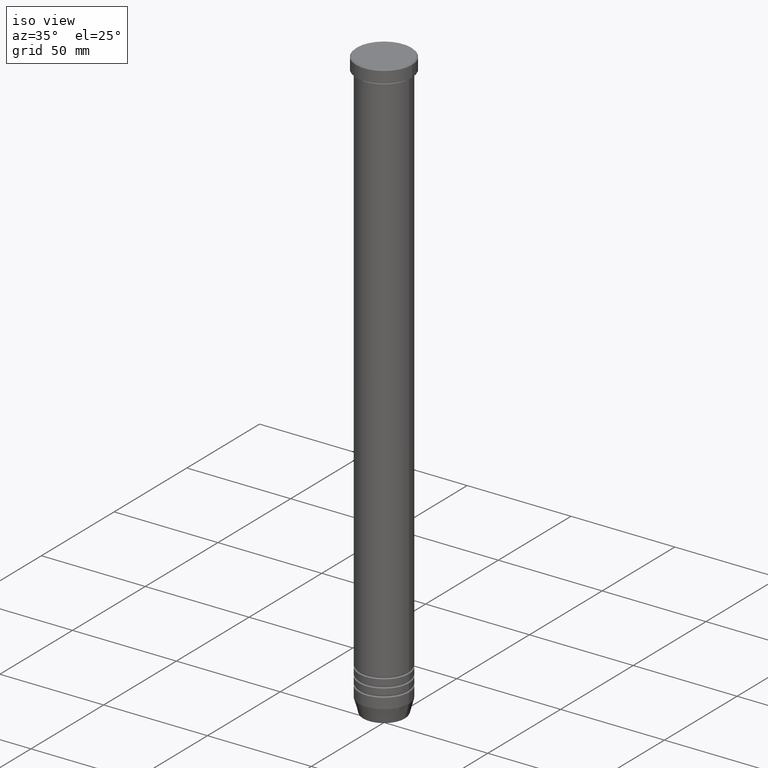
[diagram: clean part render]
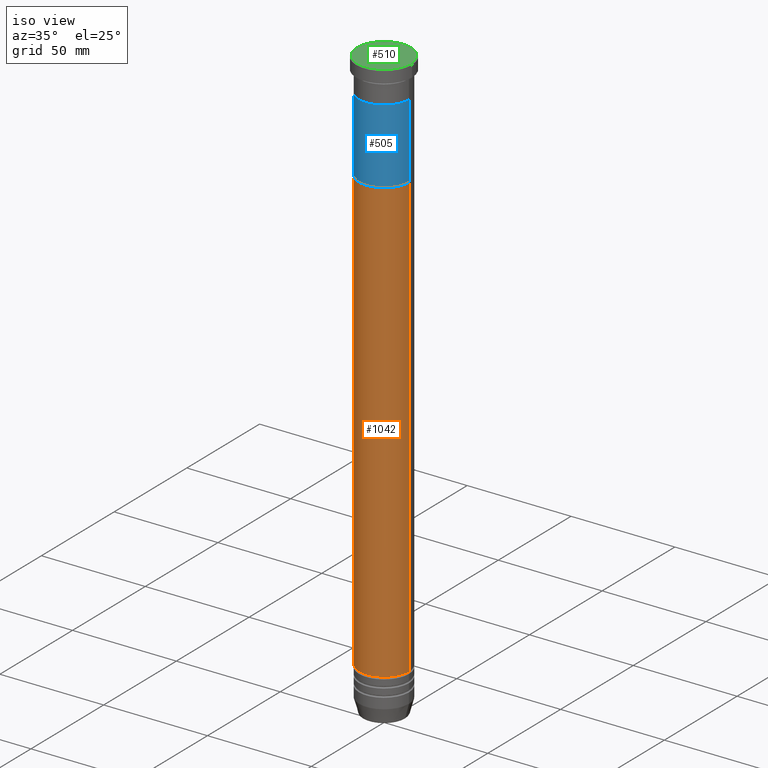
[diagram: same view with three faces highlighted in distinct colors, each labeled with its STEP entity id]
A machine part, iso view with three faces highlighted in distinct colors.
Their STEP definitions:

[orange] entity #1042 — the highlighted cylindrical surface (edge-blend (fillet) strip) has radius 12 mm, axis along (-0, -0, 1).
#18 = CARTESIAN_POINT ( 'NONE',  ( 11.99999999999999822, 0.000000000000000000, 0.000000000000000000 ) ) ;
#215 = AXIS2_PLACEMENT_3D ( 'NONE', #547, #391, #735 ) ;
#237 = FACE_OUTER_BOUND ( 'NONE', #411, .T. ) ;
#241 = CARTESIAN_POINT ( 'NONE',  ( 0.000000000000000000, 0.000000000000000000, 0.000000000000000000 ) ) ;
#250 = AXIS2_PLACEMENT_3D ( 'NONE', #273, #676, #1030 ) ;
#273 = CARTESIAN_POINT ( 'NONE',  ( 0.000000000000000000, 0.000000000000000000, -52.00000000000000000 ) ) ;
#341 = LINE ( 'NONE', #452, #718 ) ;
#343 = ORIENTED_EDGE ( 'NONE', *, *, #1076, .F. ) ;
#371 = CARTESIAN_POINT ( 'NONE',  ( -12.00000000000000178, 1.469576158976824144E-15, -52.00000000000000000 ) ) ;
#382 = CARTESIAN_POINT ( 'NONE',  ( -11.99999999999999467, 1.469576158976823553E-15, -265.0000000000000000 ) ) ;
#391 = DIRECTION ( 'NONE',  ( -0.000000000000000000, -0.000000000000000000, 1.000000000000000000 ) ) ;
#411 = EDGE_LOOP ( 'NONE', ( #548, #1072, #635, #343 ) ) ;
#452 = CARTESIAN_POINT ( 'NONE',  ( -11.99999999999999822, 1.469576158976823750E-15, 0.000000000000000000 ) ) ;
#499 = CIRCLE ( 'NONE', #215, 11.99999999999999467 ) ;
#500 = DIRECTION ( 'NONE',  ( 1.000000000000000000, 0.000000000000000000, 0.000000000000000000 ) ) ;
#547 = CARTESIAN_POINT ( 'NONE',  ( 0.000000000000000000, 0.000000000000000000, -265.0000000000000000 ) ) ;
#548 = ORIENTED_EDGE ( 'NONE', *, *, #642, .F. ) ;
#584 = CYLINDRICAL_SURFACE ( 'NONE', #1107, 11.99999999999999822 ) ;
#595 = EDGE_CURVE ( 'NONE', #1032, #1059, #948, .T. ) ;
#635 = ORIENTED_EDGE ( 'NONE', *, *, #595, .T. ) ;
#642 = EDGE_CURVE ( 'NONE', #655, #1022, #341, .T. ) ;
#654 = EDGE_CURVE ( 'NONE', #655, #1032, #499, .T. ) ;
#655 = VERTEX_POINT ( 'NONE', #382 ) ;
#671 = CARTESIAN_POINT ( 'NONE',  ( 11.99999999999999467, 0.000000000000000000, -265.0000000000000000 ) ) ;
#676 = DIRECTION ( 'NONE',  ( -0.000000000000000000, -0.000000000000000000, 1.000000000000000000 ) ) ;
#690 = DIRECTION ( 'NONE',  ( -0.000000000000000000, -0.000000000000000000, 1.000000000000000000 ) ) ;
#718 = VECTOR ( 'NONE', #804, 1000.000000000000000 ) ;
#735 = DIRECTION ( 'NONE',  ( 1.000000000000000000, 0.000000000000000000, 0.000000000000000000 ) ) ;
#794 = CIRCLE ( 'NONE', #250, 12.00000000000000178 ) ;
#804 = DIRECTION ( 'NONE',  ( -0.000000000000000000, -0.000000000000000000, 1.000000000000000000 ) ) ;
#925 = VECTOR ( 'NONE', #690, 1000.000000000000000 ) ;
#948 = LINE ( 'NONE', #18, #925 ) ;
#1022 = VERTEX_POINT ( 'NONE', #371 ) ;
#1030 = DIRECTION ( 'NONE',  ( 1.000000000000000000, 0.000000000000000000, 0.000000000000000000 ) ) ;
#1032 = VERTEX_POINT ( 'NONE', #671 ) ;
#1042 = ADVANCED_FACE ( 'NONE', ( #237 ), #584, .T. ) ;
#1059 = VERTEX_POINT ( 'NONE', #1061 ) ;
#1061 = CARTESIAN_POINT ( 'NONE',  ( 12.00000000000000178, 0.000000000000000000, -52.00000000000000000 ) ) ;
#1072 = ORIENTED_EDGE ( 'NONE', *, *, #654, .T. ) ;
#1076 = EDGE_CURVE ( 'NONE', #1022, #1059, #794, .T. ) ;
#1107 = AXIS2_PLACEMENT_3D ( 'NONE', #241, #1114, #500 ) ;
#1114 = DIRECTION ( 'NONE',  ( -0.000000000000000000, -0.000000000000000000, 1.000000000000000000 ) ) ;

[blue] entity #505 — the highlighted cylindrical surface (edge-blend (fillet) strip) has radius 12 mm, axis along (-0, -0, 1).
#126 = DIRECTION ( 'NONE',  ( -0.000000000000000000, -0.000000000000000000, 1.000000000000000000 ) ) ;
#150 = AXIS2_PLACEMENT_3D ( 'NONE', #659, #314, #1015 ) ;
#156 = VECTOR ( 'NONE', #126, 1000.000000000000000 ) ;
#172 = EDGE_CURVE ( 'NONE', #699, #278, #1000, .T. ) ;
#278 = VERTEX_POINT ( 'NONE', #389 ) ;
#303 = FACE_OUTER_BOUND ( 'NONE', #360, .T. ) ;
#314 = DIRECTION ( 'NONE',  ( 0.000000000000000000, 0.000000000000000000, -1.000000000000000000 ) ) ;
#320 = CARTESIAN_POINT ( 'NONE',  ( -12.00000000000000178, 1.469576158976824144E-15, -16.00000000000000000 ) ) ;
#323 = DIRECTION ( 'NONE',  ( -0.000000000000000000, -0.000000000000000000, 1.000000000000000000 ) ) ;
#339 = DIRECTION ( 'NONE',  ( 0.000000000000000000, 0.000000000000000000, -1.000000000000000000 ) ) ;
#353 = EDGE_CURVE ( 'NONE', #785, #680, #1037, .T. ) ;
#357 = ORIENTED_EDGE ( 'NONE', *, *, #829, .F. ) ;
#360 = EDGE_LOOP ( 'NONE', ( #357, #1109, #722, #707 ) ) ;
#389 = CARTESIAN_POINT ( 'NONE',  ( -12.00000000000000178, 1.469576158976824144E-15, -52.00000000000000000 ) ) ;
#390 = CYLINDRICAL_SURFACE ( 'NONE', #663, 12.00000000000000178 ) ;
#398 = CARTESIAN_POINT ( 'NONE',  ( -12.00000000000000178, 1.469576158976824144E-15, -52.00000000000000000 ) ) ;
#402 = AXIS2_PLACEMENT_3D ( 'NONE', #430, #339, #992 ) ;
#430 = CARTESIAN_POINT ( 'NONE',  ( 0.000000000000000000, 0.000000000000000000, -52.00000000000000000 ) ) ;
#505 = ADVANCED_FACE ( 'NONE', ( #303 ), #390, .T. ) ;
#508 = LINE ( 'NONE', #1112, #156 ) ;
#659 = CARTESIAN_POINT ( 'NONE',  ( 0.000000000000000000, 0.000000000000000000, -16.00000000000000000 ) ) ;
#663 = AXIS2_PLACEMENT_3D ( 'NONE', #1091, #323, #934 ) ;
#680 = VERTEX_POINT ( 'NONE', #320 ) ;
#699 = VERTEX_POINT ( 'NONE', #1033 ) ;
#707 = ORIENTED_EDGE ( 'NONE', *, *, #353, .T. ) ;
#722 = ORIENTED_EDGE ( 'NONE', *, *, #1023, .T. ) ;
#739 = DIRECTION ( 'NONE',  ( -0.000000000000000000, -0.000000000000000000, 1.000000000000000000 ) ) ;
#785 = VERTEX_POINT ( 'NONE', #1075 ) ;
#829 = EDGE_CURVE ( 'NONE', #278, #680, #1095, .T. ) ;
#863 = VECTOR ( 'NONE', #739, 1000.000000000000000 ) ;
#934 = DIRECTION ( 'NONE',  ( 1.000000000000000000, 0.000000000000000000, 0.000000000000000000 ) ) ;
#992 = DIRECTION ( 'NONE',  ( -1.000000000000000000, 0.000000000000000000, 0.000000000000000000 ) ) ;
#1000 = CIRCLE ( 'NONE', #402, 12.00000000000000178 ) ;
#1015 = DIRECTION ( 'NONE',  ( -1.000000000000000000, 0.000000000000000000, 0.000000000000000000 ) ) ;
#1023 = EDGE_CURVE ( 'NONE', #699, #785, #508, .T. ) ;
#1033 = CARTESIAN_POINT ( 'NONE',  ( 12.00000000000000178, 0.000000000000000000, -52.00000000000000000 ) ) ;
#1037 = CIRCLE ( 'NONE', #150, 12.00000000000000178 ) ;
#1075 = CARTESIAN_POINT ( 'NONE',  ( 12.00000000000000178, 0.000000000000000000, -16.00000000000000000 ) ) ;
#1091 = CARTESIAN_POINT ( 'NONE',  ( 0.000000000000000000, 0.000000000000000000, -52.00000000000000000 ) ) ;
#1095 = LINE ( 'NONE', #398, #863 ) ;
#1109 = ORIENTED_EDGE ( 'NONE', *, *, #172, .F. ) ;
#1112 = CARTESIAN_POINT ( 'NONE',  ( 12.00000000000000178, 0.000000000000000000, -52.00000000000000000 ) ) ;

[green] entity #510 — the highlighted planar face has unit normal (0, -0, 1).
#52 = CARTESIAN_POINT ( 'NONE',  ( 12.99999999999999289, 1.622657008870242488E-15, 0.000000000000000000 ) ) ;
#65 = EDGE_LOOP ( 'NONE', ( #1102, #619 ) ) ;
#406 = CARTESIAN_POINT ( 'NONE',  ( -12.99999999999999289, 0.000000000000000000, 0.000000000000000000 ) ) ;
#418 = EDGE_CURVE ( 'NONE', #436, #986, #1016, .T. ) ;
#436 = VERTEX_POINT ( 'NONE', #406 ) ;
#446 = CIRCLE ( 'NONE', #464, 12.99999999999999289 ) ;
#464 = AXIS2_PLACEMENT_3D ( 'NONE', #1034, #956, #598 ) ;
#510 = ADVANCED_FACE ( 'NONE', ( #1039 ), #1108, .T. ) ;
#598 = DIRECTION ( 'NONE',  ( 1.000000000000000000, 0.000000000000000000, 0.000000000000000000 ) ) ;
#619 = ORIENTED_EDGE ( 'NONE', *, *, #1045, .T. ) ;
#738 = DIRECTION ( 'NONE',  ( -0.000000000000000000, -0.000000000000000000, 1.000000000000000000 ) ) ;
#810 = AXIS2_PLACEMENT_3D ( 'NONE', #930, #738, #1093 ) ;
#835 = CARTESIAN_POINT ( 'NONE',  ( 0.000000000000000000, 0.000000000000000000, 0.000000000000000000 ) ) ;
#841 = DIRECTION ( 'NONE',  ( 0.000000000000000000, -0.000000000000000000, 1.000000000000000000 ) ) ;
#930 = CARTESIAN_POINT ( 'NONE',  ( 0.000000000000000000, 0.000000000000000000, 0.000000000000000000 ) ) ;
#956 = DIRECTION ( 'NONE',  ( -0.000000000000000000, -0.000000000000000000, 1.000000000000000000 ) ) ;
#986 = VERTEX_POINT ( 'NONE', #52 ) ;
#1016 = CIRCLE ( 'NONE', #810, 12.99999999999999289 ) ;
#1031 = DIRECTION ( 'NONE',  ( 1.000000000000000000, 0.000000000000000000, 0.000000000000000000 ) ) ;
#1034 = CARTESIAN_POINT ( 'NONE',  ( 0.000000000000000000, 0.000000000000000000, 0.000000000000000000 ) ) ;
#1039 = FACE_OUTER_BOUND ( 'NONE', #65, .T. ) ;
#1045 = EDGE_CURVE ( 'NONE', #986, #436, #446, .T. ) ;
#1093 = DIRECTION ( 'NONE',  ( 1.000000000000000000, 0.000000000000000000, 0.000000000000000000 ) ) ;
#1102 = ORIENTED_EDGE ( 'NONE', *, *, #418, .T. ) ;
#1108 = PLANE ( 'NONE',  #1139 ) ;
#1139 = AXIS2_PLACEMENT_3D ( 'NONE', #835, #841, #1031 ) ;